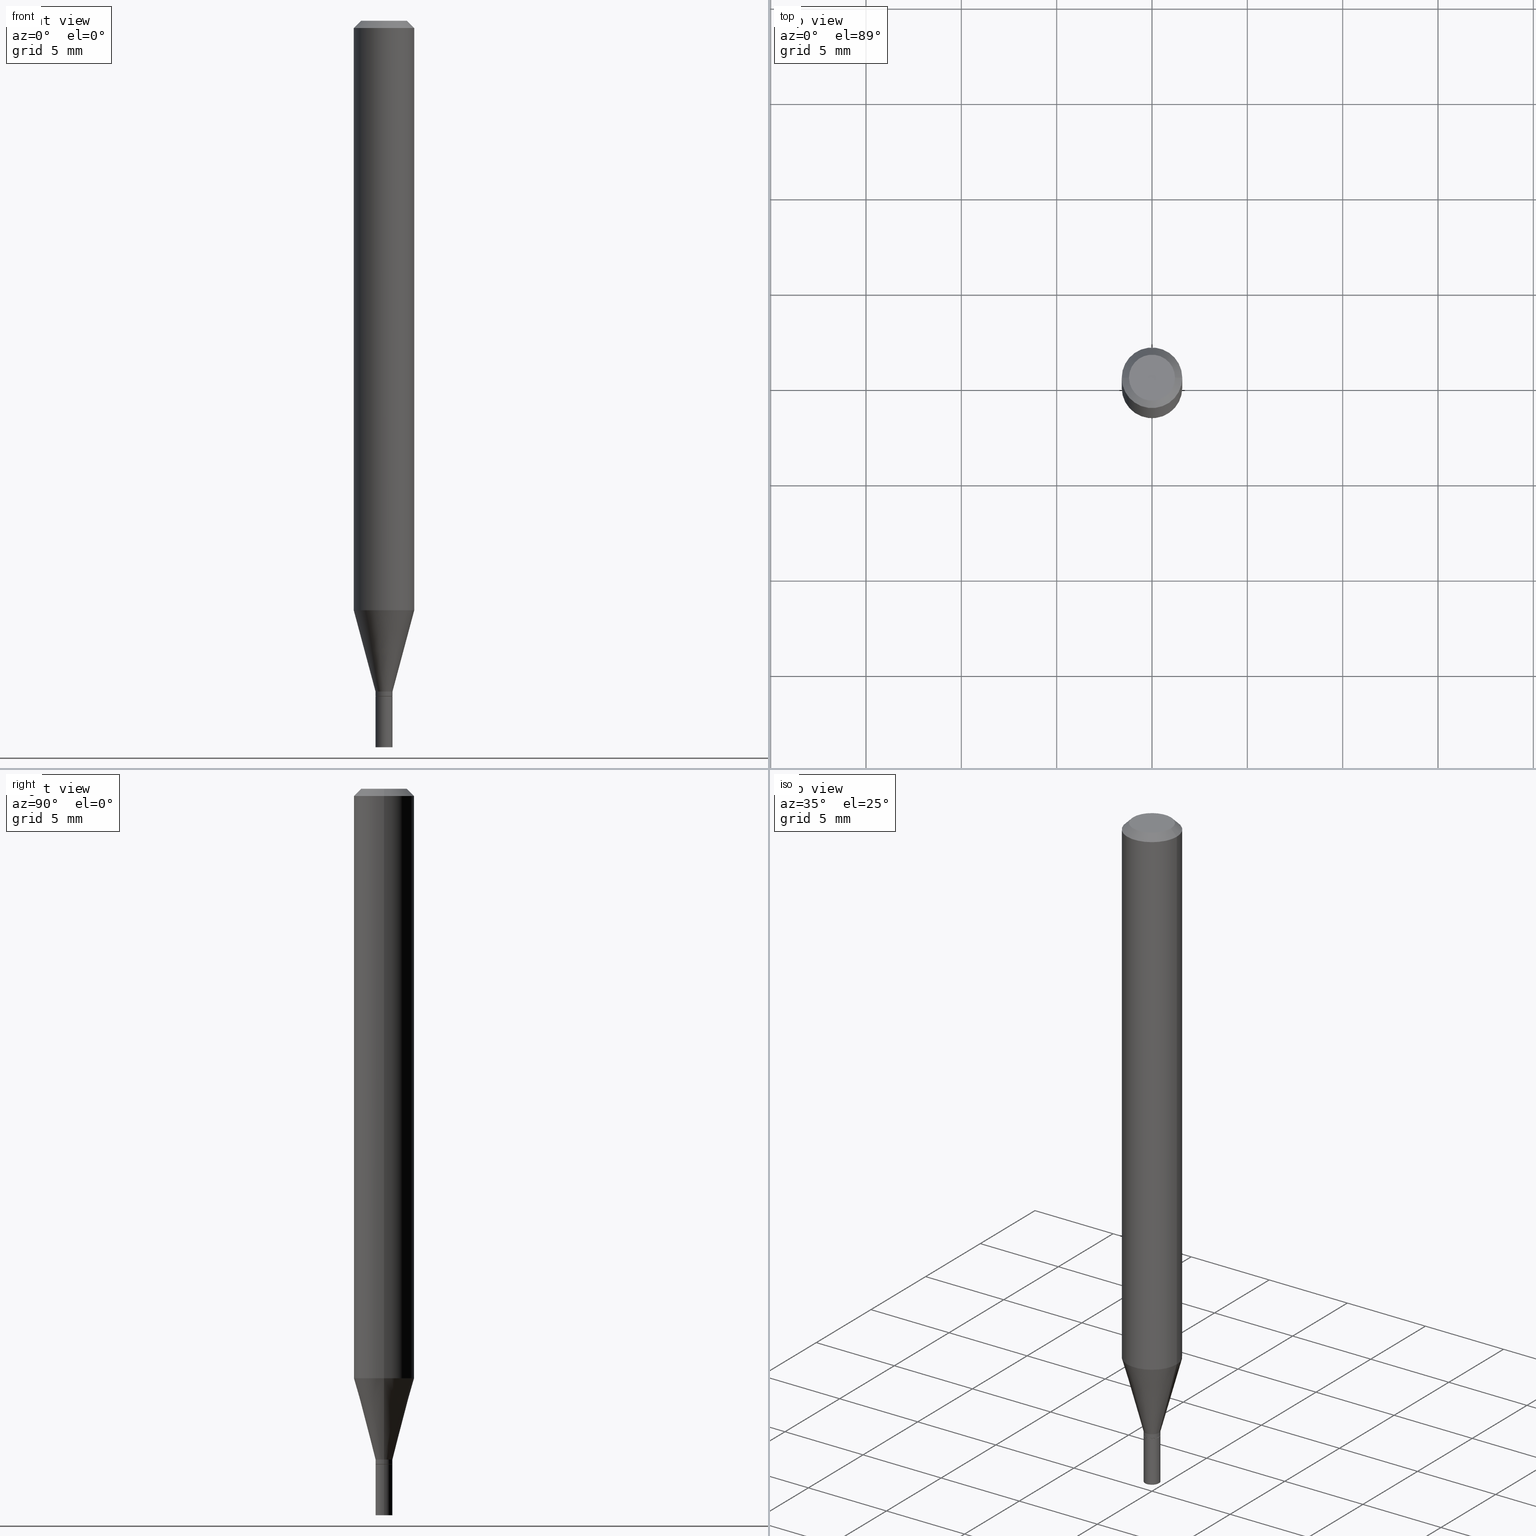
[diagram: canonical four-view strip — front | top / right | iso, engineering-drawing reading convention]
A machine part, canonical four-view strip (front | top / right | iso — engineering-drawing reading convention). The complete STEP part file that produces these views, byte-faithful:
ISO-10303-21;
HEADER;
FILE_DESCRIPTION (( 'STEP AP203' ),
    '1' );
FILE_NAME ('00841.STEP',
    '2024-03-19T22:41:24',
    ( '' ),
    ( '' ),
    'SwSTEP 2.0',
    'SolidWorks 2023',
    '' );
FILE_SCHEMA (( 'CONFIG_CONTROL_DESIGN' ));
ENDSEC;

DATA;
#1 = AXIS2_PLACEMENT_3D ( 'NONE', #294, #68, #440 ) ;
#2 = CARTESIAN_POINT ( 'NONE',  ( -0.01700000000000000122, -4.747174975432860677E-15, -1.395000000000000018 ) ) ;
#3 = SHAPE_DEFINITION_REPRESENTATION ( #301, #397 ) ;
#4 = CLOSED_SHELL ( 'NONE', ( #194, #265, #173, #40 ) ) ;
#5 = VECTOR ( 'NONE', #191, 39.37007874015748143 ) ;
#6 = CARTESIAN_POINT ( 'NONE',  ( -0.01749999999999992534, 1.243449787580170020E-16, -8.608136407946047003E-31 ) ) ;
#7 = APPROVAL_ROLE ( '' ) ;
#8 = DIRECTION ( 'NONE',  ( -2.445468806185136597E-29, 3.491481338843145583E-15, 1.000000000000000000 ) ) ;
#9 = ORIENTED_EDGE ( 'NONE', *, *, #108, .F. ) ;
#10 = LINE ( 'NONE', #215, #311 ) ;
#11 = FACE_OUTER_BOUND ( 'NONE', #366, .T. ) ;
#12 = VECTOR ( 'NONE', #101, 39.37007874015748143 ) ;
#13 = DIRECTION ( 'NONE',  ( -2.438088387897960049E-29, 3.491481338843145188E-15, 1.000000000000000000 ) ) ;
#14 = PRODUCT_DEFINITION_FORMATION_WITH_SPECIFIED_SOURCE ( 'ANY', '', #377, .NOT_KNOWN. ) ;
#15 = LINE ( 'NONE', #45, #12 ) ;
#16 = LINE ( 'NONE', #364, #180 ) ;
#17 = DIRECTION ( 'NONE',  ( 2.445468806185136597E-29, -3.491481338843145583E-15, -1.000000000000000000 ) ) ;
#18 = CARTESIAN_POINT ( 'NONE',  ( -0.01749999999999992534, -4.711356675539740119E-15, -1.385000000000000009 ) ) ;
#19 = FACE_OUTER_BOUND ( 'NONE', #425, .T. ) ;
#20 = PERSON_AND_ORGANIZATION ( #347, #144 ) ;
#21 = VECTOR ( 'NONE', #212, 39.37007874015748143 ) ;
#22 = CC_DESIGN_PERSON_AND_ORGANIZATION_ASSIGNMENT ( #166, #314, ( #14 ) ) ;
#23 = AXIS2_PLACEMENT_3D ( 'NONE', #128, #252, #136 ) ;
#24 = VERTEX_POINT ( 'NONE', #157 ) ;
#25 = ORIENTED_EDGE ( 'NONE', *, *, #67, .T. ) ;
#26 = DIRECTION ( 'NONE',  ( 2.438088387897960049E-29, -3.491481338843145188E-15, -1.000000000000000000 ) ) ;
#27 = ORIENTED_EDGE ( 'NONE', *, *, #158, .T. ) ;
#28 = APPROVAL_STATUS ( 'not_yet_approved' ) ;
#29 = ADVANCED_FACE ( 'NONE', ( #348 ), #297, .T. ) ;
#30 = ORIENTED_EDGE ( 'NONE', *, *, #34, .F. ) ;
#31 = PERSON_AND_ORGANIZATION_ROLE ( 'creator' ) ;
#32 = ORIENTED_EDGE ( 'NONE', *, *, #158, .F. ) ;
#33 = EDGE_CURVE ( 'NONE', #196, #382, #274, .T. ) ;
#34 = EDGE_CURVE ( 'NONE', #244, #165, #234, .T. ) ;
#35 = FACE_OUTER_BOUND ( 'NONE', #130, .T. ) ;
#36 = CIRCLE ( 'NONE', #161, 0.06250000000000000000 ) ;
#37 = AXIS2_PLACEMENT_3D ( 'NONE', #48, #320, #181 ) ;
#38 = CARTESIAN_POINT ( 'NONE',  ( -0.04749999999999999362, 3.578768372314202124E-16, -5.229656247639803061E-16 ) ) ;
#39 = DIRECTION ( 'NONE',  ( -2.445468806185136877E-29, 3.491481338843145188E-15, 1.000000000000000000 ) ) ;
#40 = ADVANCED_FACE ( 'NONE', ( #90 ), #63, .F. ) ;
#41 = DIMENSIONAL_EXPONENTS ( 1.000000000000000000, 0.000000000000000000, 0.000000000000000000, 0.000000000000000000, 0.000000000000000000, 0.000000000000000000, 0.000000000000000000 ) ;
#42 = CARTESIAN_POINT ( 'NONE',  ( 3.411428984628265351E-29, -4.870616467686188228E-15, -1.395000000000000018 ) ) ;
#43 = CARTESIAN_POINT ( 'NONE',  ( 0.000000000000000000, 0.000000000000000000, 0.000000000000000000 ) ) ;
#44 = DIRECTION ( 'NONE',  ( -2.445468806185136597E-29, 3.491481338843145583E-15, 1.000000000000000000 ) ) ;
#45 = CARTESIAN_POINT ( 'NONE',  ( 0.06250000000000000000, -4.811533449433679005E-16, -0.01499999999999999944 ) ) ;
#46 = AXIS2_PLACEMENT_3D ( 'NONE', #363, #293, #403 ) ;
#47 = VECTOR ( 'NONE', #70, 39.37007874015748143 ) ;
#48 = CARTESIAN_POINT ( 'NONE',  ( 3.584916967085606921E-29, -5.356492647442320375E-15, -1.500000000000000222 ) ) ;
#49 = CC_DESIGN_SECURITY_CLASSIFICATION ( #277, ( #14 ) ) ;
#50 = DIRECTION ( 'NONE',  ( 1.000000000000000000, -6.982962677686266711E-15, 0.000000000000000000 ) ) ;
#51 = VERTEX_POINT ( 'NONE', #313 ) ;
#52 = CARTESIAN_POINT ( 'NONE',  ( 0.01750000000000000167, -1.222018468595096625E-16, 8.533309357642889039E-31 ) ) ;
#53 = CIRCLE ( 'NONE', #112, 0.01700000000000000122 ) ;
#54 = PRODUCT_DEFINITION ( 'UNKNOWN', '', #14, #132 ) ;
#55 = LINE ( 'NONE', #187, #5 ) ;
#56 = CYLINDRICAL_SURFACE ( 'NONE', #282, 0.01749999999999992534 ) ;
#57 = VECTOR ( 'NONE', #39, 39.37007874015748143 ) ;
#58 = AXIS2_PLACEMENT_3D ( 'NONE', #42, #13, #135 ) ;
#59 = ORIENTED_EDGE ( 'NONE', *, *, #323, .F. ) ;
#60 = COORDINATED_UNIVERSAL_TIME_OFFSET ( 5, 0, .BEHIND. ) ;
#61 = ORIENTED_EDGE ( 'NONE', *, *, #129, .T. ) ;
#62 = DATE_AND_TIME ( #388, #150 ) ;
#63 = PLANE ( 'NONE',  #409 ) ;
#64 = CONICAL_SURFACE ( 'NONE', #442, 0.06250000000000000000, 0.7853981633974658205 ) ;
#65 = DIRECTION ( 'NONE',  ( -2.445468806185136597E-29, 3.491481338843145583E-15, 1.000000000000000000 ) ) ;
#66 = VERTEX_POINT ( 'NONE', #2 ) ;
#67 = EDGE_CURVE ( 'NONE', #465, #262, #142, .T. ) ;
#68 = DIRECTION ( 'NONE',  ( -2.445468806185136597E-29, 3.491481338843145583E-15, 1.000000000000000000 ) ) ;
#69 = AXIS2_PLACEMENT_3D ( 'NONE', #455, #345, #184 ) ;
#70 = DIRECTION ( 'NONE',  ( -2.445468806185136877E-29, 3.491481338843145188E-15, 1.000000000000000000 ) ) ;
#71 = CARTESIAN_POINT ( 'NONE',  ( 3.668203209277705088E-31, -5.237222008264718399E-17, -0.01499999999999999944 ) ) ;
#72 = VERTEX_POINT ( 'NONE', #288 ) ;
#73 = CARTESIAN_POINT ( 'NONE',  ( 3.411428984628265351E-29, -4.870616467686188228E-15, -1.395000000000000018 ) ) ;
#74 = EDGE_CURVE ( 'NONE', #165, #244, #36, .T. ) ;
#75 = CARTESIAN_POINT ( 'NONE',  ( 0.06250000000000000000, -4.888073874380388472E-16, -0.01499999999999999944 ) ) ;
#76 = EDGE_CURVE ( 'NONE', #382, #217, #85, .T. ) ;
#77 = ORIENTED_EDGE ( 'NONE', *, *, #298, .T. ) ;
#78 = DIRECTION ( 'NONE',  ( 1.000000000000000000, -6.982962677686248567E-15, 0.000000000000000000 ) ) ;
#79 = CARTESIAN_POINT ( 'NONE',  ( -0.06250000000000000000, 3.840629472727444916E-16, -0.01499999999999999944 ) ) ;
#80 = AXIS2_PLACEMENT_3D ( 'NONE', #216, #17, #365 ) ;
#81 = AXIS2_PLACEMENT_3D ( 'NONE', #402, #44, #168 ) ;
#82 = DIRECTION ( 'NONE',  ( 1.000000000000000000, -6.982962677686279332E-15, 0.000000000000000000 ) ) ;
#83 = EDGE_LOOP ( 'NONE', ( #267, #371, #326, #461 ) ) ;
#84 = ORIENTED_EDGE ( 'NONE', *, *, #273, .F. ) ;
#85 = CIRCLE ( 'NONE', #23, 0.01749999999999992534 ) ;
#86 = DIRECTION ( 'NONE',  ( -2.445468806185136597E-29, 3.491481338843145583E-15, 1.000000000000000000 ) ) ;
#87 = CARTESIAN_POINT ( 'NONE',  ( 2.976276674081067124E-29, -4.249334295536902658E-15, -1.217057713659400964 ) ) ;
#88 = ORIENTED_EDGE ( 'NONE', *, *, #315, .F. ) ;
#89 = LOCAL_TIME ( 18, 41, 24.00000000000000000, #93 ) ;
#90 = FACE_OUTER_BOUND ( 'NONE', #290, .T. ) ;
#91 = VERTEX_POINT ( 'NONE', #280 ) ;
#92 = DIRECTION ( 'NONE',  ( 1.000000000000000000, -6.982962677686270655E-15, 0.000000000000000000 ) ) ;
#93 = COORDINATED_UNIVERSAL_TIME_OFFSET ( 5, 0, .BEHIND. ) ;
#94 = ADVANCED_FACE ( 'NONE', ( #285 ), #64, .T. ) ;
#95 = PERSON_AND_ORGANIZATION ( #347, #144 ) ;
#96 = ORIENTED_EDGE ( 'NONE', *, *, #33, .T. ) ;
#97 = LINE ( 'NONE', #284, #21 ) ;
#98 = PERSON_AND_ORGANIZATION ( #347, #144 ) ;
#99 = EDGE_LOOP ( 'NONE', ( #376, #186, #279, #32 ) ) ;
#100 = CYLINDRICAL_SURFACE ( 'NONE', #340, 0.06250000000000000000 ) ;
#101 = DIRECTION ( 'NONE',  ( 0.7071067811865598962, -7.319954787623298644E-15, -0.7071067811865351382 ) ) ;
#102 = CIRCLE ( 'NONE', #378, 0.04749999999999999362 ) ;
#103 = DIRECTION ( 'NONE',  ( -2.445468806185136877E-29, 3.491481338843145188E-15, 1.000000000000000000 ) ) ;
#104 = EDGE_LOOP ( 'NONE', ( #305, #138, #404, #339 ) ) ;
#105 = CARTESIAN_POINT ( 'NONE',  ( 3.668203209277704895E-29, -5.237222008264718177E-15, -1.500000000000000222 ) ) ;
#106 = DIRECTION ( 'NONE',  ( -2.445468806185136597E-29, 3.491481338843145583E-15, 1.000000000000000000 ) ) ;
#107 = FACE_OUTER_BOUND ( 'NONE', #183, .T. ) ;
#108 = EDGE_CURVE ( 'NONE', #439, #196, #227, .T. ) ;
#109 = CARTESIAN_POINT ( 'NONE',  ( 0.000000000000000000, 0.000000000000000000, 0.000000000000000000 ) ) ;
#110 = CIRCLE ( 'NONE', #331, 0.06250000000000000000 ) ;
#111 = ORIENTED_EDGE ( 'NONE', *, *, #281, .T. ) ;
#112 = AXIS2_PLACEMENT_3D ( 'NONE', #73, #328, #361 ) ;
#113 = CARTESIAN_POINT ( 'NONE',  ( 0.000000000000000000, 0.000000000000000000, 0.000000000000000000 ) ) ;
#114 = PLANE ( 'NONE',  #321 ) ;
#115 = ADVANCED_FACE ( 'NONE', ( #11 ), #220, .T. ) ;
#116 = CARTESIAN_POINT ( 'NONE',  ( -0.01749999999999992534, -4.744525748258750265E-15, -1.394500000000000073 ) ) ;
#117 = PERSON_AND_ORGANIZATION ( #347, #144 ) ;
#118 = APPROVAL_PERSON_ORGANIZATION ( #139, #127, #7 ) ;
#119 = CARTESIAN_POINT ( 'NONE',  ( 0.01749999999999992534, -1.222018468595091448E-16, 8.533309357642850503E-31 ) ) ;
#120 = ORIENTED_EDGE ( 'NONE', *, *, #344, .F. ) ;
#121 = DIRECTION ( 'NONE',  ( 1.000000000000000000, -6.982962677686279332E-15, 0.000000000000000000 ) ) ;
#122 = PERSON_AND_ORGANIZATION_ROLE ( 'design_owner' ) ;
#123 = EDGE_LOOP ( 'NONE', ( #170, #203, #59, #250 ) ) ;
#124 = FACE_OUTER_BOUND ( 'NONE', #422, .T. ) ;
#125 = ORIENTED_EDGE ( 'NONE', *, *, #74, .T. ) ;
#126 = VERTEX_POINT ( 'NONE', #185 ) ;
#127 = APPROVAL ( #240, 'UNSPECIFIED' ) ;
#128 = CARTESIAN_POINT ( 'NONE',  ( 3.386974296566414366E-29, -4.835701654297756579E-15, -1.385000000000000009 ) ) ;
#129 = EDGE_CURVE ( 'NONE', #401, #51, #434, .T. ) ;
#130 = EDGE_LOOP ( 'NONE', ( #225, #176, #77, #30 ) ) ;
#131 = CIRCLE ( 'NONE', #245, 0.01750000000000000167 ) ;
#132 = DESIGN_CONTEXT ( 'detailed design', #319, 'design' ) ;
#133 = PERSON_AND_ORGANIZATION_ROLE ( 'classification_officer' ) ;
#134 = CARTESIAN_POINT ( 'NONE',  ( 0.06250000000000000000, -4.364351673553916694E-16, 3.047610484872459871E-30 ) ) ;
#135 = DIRECTION ( 'NONE',  ( 1.000000000000000000, -6.982962677686265922E-15, 4.876176775795935793E-29 ) ) ;
#136 = DIRECTION ( 'NONE',  ( 1.000000000000000000, -6.982962677686279332E-15, 0.000000000000000000 ) ) ;
#137 = EDGE_CURVE ( 'NONE', #24, #140, #110, .T. ) ;
#138 = ORIENTED_EDGE ( 'NONE', *, *, #438, .T. ) ;
#139 = PERSON_AND_ORGANIZATION ( #347, #144 ) ;
#140 = VERTEX_POINT ( 'NONE', #75 ) ;
#141 = CARTESIAN_POINT ( 'NONE',  ( 0.000000000000000000, 0.000000000000000000, 0.000000000000000000 ) ) ;
#142 = CIRCLE ( 'NONE', #351, 0.01750000000000000167 ) ;
#143 = DIRECTION ( 'NONE',  ( 1.000000000000000000, -6.982962677686267499E-15, 4.852736867747366768E-29 ) ) ;
#144 = ORGANIZATION ( 'UNSPECIFIED', 'UNSPECIFIED', '' ) ;
#145 = CYLINDRICAL_SURFACE ( 'NONE', #369, 0.01749999999999992534 ) ;
#146 = FACE_OUTER_BOUND ( 'NONE', #99, .T. ) ;
#147 = EDGE_CURVE ( 'NONE', #51, #140, #15, .T. ) ;
#148 = DIRECTION ( 'NONE',  ( 0.7071067811865642261, -2.468850131082431399E-15, 0.7071067811865309194 ) ) ;
#149 =( NAMED_UNIT ( * ) PLANE_ANGLE_UNIT ( ) SI_UNIT ( $, .RADIAN. ) );
#150 = LOCAL_TIME ( 18, 41, 24.00000000000000000, #60 ) ;
#151 = FACE_OUTER_BOUND ( 'NONE', #307, .T. ) ;
#152 = ADVANCED_FACE ( 'NONE', ( #222 ), #195, .T. ) ;
#153 = CARTESIAN_POINT ( 'NONE',  ( 0.01750000000000000167, -4.992818314545698211E-15, -1.395000000000000018 ) ) ;
#154 = CONICAL_SURFACE ( 'NONE', #263, 0.01700000000000000122, 0.7853981633974718157 ) ;
#155 = ORIENTED_EDGE ( 'NONE', *, *, #33, .F. ) ;
#156 = CIRCLE ( 'NONE', #359, 0.01750000000000000167 ) ;
#157 = CARTESIAN_POINT ( 'NONE',  ( -0.06250000000000000000, -1.706764047959712450E-15, -0.01499999999999999944 ) ) ;
#158 = EDGE_CURVE ( 'NONE', #91, #465, #373, .T. ) ;
#159 = ORIENTED_EDGE ( 'NONE', *, *, #137, .T. ) ;
#160 = APPROVAL_ROLE ( '' ) ;
#161 = AXIS2_PLACEMENT_3D ( 'NONE', #441, #360, #295 ) ;
#162 = APPROVAL ( #192, 'UNSPECIFIED' ) ;
#163 = DIRECTION ( 'NONE',  ( -2.445468806185136877E-29, 3.491481338843145188E-15, 1.000000000000000000 ) ) ;
#164 = ORIENTED_EDGE ( 'NONE', *, *, #302, .T. ) ;
#165 = VERTEX_POINT ( 'NONE', #368 ) ;
#166 = PERSON_AND_ORGANIZATION ( #347, #144 ) ;
#167 = AXIS2_PLACEMENT_3D ( 'NONE', #43, #106, #333 ) ;
#168 = DIRECTION ( 'NONE',  ( 1.000000000000000000, -6.982962677686279332E-15, 0.000000000000000000 ) ) ;
#169 = AXIS2_PLACEMENT_3D ( 'NONE', #113, #264, #413 ) ;
#170 = ORIENTED_EDGE ( 'NONE', *, *, #380, .T. ) ;
#171 = DIRECTION ( 'NONE',  ( -2.445468806185136597E-29, 3.491481338843145583E-15, 1.000000000000000000 ) ) ;
#172 = CYLINDRICAL_SURFACE ( 'NONE', #459, 0.01750000000000000167 ) ;
#173 = ADVANCED_FACE ( 'NONE', ( #179 ), #182, .T. ) ;
#174 = LINE ( 'NONE', #254, #399 ) ;
#175 = DIRECTION ( 'NONE',  ( 1.000000000000000000, -6.982962677686265922E-15, 4.876176775795936353E-29 ) ) ;
#176 = ORIENTED_EDGE ( 'NONE', *, *, #231, .T. ) ;
#177 = DIRECTION ( 'NONE',  ( 1.000000000000000000, -6.982962677686266711E-15, 4.876176775795935232E-29 ) ) ;
#178 = VECTOR ( 'NONE', #325, 39.37007874015748143 ) ;
#179 = FACE_OUTER_BOUND ( 'NONE', #233, .T. ) ;
#180 = VECTOR ( 'NONE', #324, 39.37007874015748143 ) ;
#181 = DIRECTION ( 'NONE',  ( 1.000000000000000000, -6.982962677686265922E-15, 4.876176775795935793E-29 ) ) ;
#182 = CYLINDRICAL_SURFACE ( 'NONE', #167, 0.01750000000000000167 ) ;
#183 = EDGE_LOOP ( 'NONE', ( #350, #352, #408, #155 ) ) ;
#184 = DIRECTION ( 'NONE',  ( 1.000000000000000000, -6.982962677686274599E-15, 0.000000000000000000 ) ) ;
#185 = CARTESIAN_POINT ( 'NONE',  ( 0.01700000000000000122, -4.989326833206855204E-15, -1.395000000000000018 ) ) ;
#186 = ORIENTED_EDGE ( 'NONE', *, *, #344, .T. ) ;
#187 = CARTESIAN_POINT ( 'NONE',  ( -0.01700000000000000122, -4.749824202606971878E-15, -1.395000000000000018 ) ) ;
#188 = CONICAL_SURFACE ( 'NONE', #81, 0.01749999999999992534, 0.2617993877991502960 ) ;
#189 = LINE ( 'NONE', #18, #427 ) ;
#190 = PERSON_AND_ORGANIZATION ( #347, #144 ) ;
#191 = DIRECTION ( 'NONE',  ( -0.7071067811865642261, 7.493145998870414114E-15, 0.7071067811865309194 ) ) ;
#192 = APPROVAL_STATUS ( 'not_yet_approved' ) ;
#193 =( LENGTH_UNIT ( ) NAMED_UNIT ( * ) SI_UNIT ( $, .METRE. ) );
#194 = ADVANCED_FACE ( 'NONE', ( #146 ), #172, .T. ) ;
#195 = CONICAL_SURFACE ( 'NONE', #80, 0.06250000000000000000, 0.7853981633974658205 ) ;
#196 = VERTEX_POINT ( 'NONE', #431 ) ;
#197 = CARTESIAN_POINT ( 'NONE',  ( -0.06249999999999999306, -3.805245085686840042E-15, -1.217057713659400964 ) ) ;
#198 = CARTESIAN_POINT ( 'NONE',  ( 3.316907271900976096E-16, 0.04749999999999999362, -4.273281759770383169E-16 ) ) ;
#199 = MANIFOLD_SOLID_BREP ( 'Body-Move/Copy2[2]', #286 ) ;
#200 = DIRECTION ( 'NONE',  ( -1.000000000000000000, 6.982962677686265922E-15, -4.876176775795935793E-29 ) ) ;
#201 = AXIS2_PLACEMENT_3D ( 'NONE', #447, #255, #143 ) ;
#202 = MANIFOLD_SOLID_BREP ( 'Body-Move/Copy2[1]', #4 ) ;
#203 = ORIENTED_EDGE ( 'NONE', *, *, #433, .T. ) ;
#204 = ORIENTED_EDGE ( 'NONE', *, *, #34, .T. ) ;
#205 = ORIENTED_EDGE ( 'NONE', *, *, #108, .T. ) ;
#206 = FACE_OUTER_BOUND ( 'NONE', #449, .T. ) ;
#207 = ORIENTED_EDGE ( 'NONE', *, *, #387, .F. ) ;
#208 = FACE_OUTER_BOUND ( 'NONE', #310, .T. ) ;
#209 = CARTESIAN_POINT ( 'NONE',  ( 3.668203209277705088E-31, -5.237222008264718399E-17, -0.01499999999999999944 ) ) ;
#210 = CC_DESIGN_APPROVAL ( #342, ( #14 ) ) ;
#211 = DATE_AND_TIME ( #416, #89 ) ;
#212 = DIRECTION ( 'NONE',  ( 0.2588190451025216277, 1.565188264969619995E-15, 0.9659258262890679791 ) ) ;
#213 = DIRECTION ( 'NONE',  ( -1.000000000000000000, 6.982962677686266711E-15, 0.000000000000000000 ) ) ;
#214 = CC_DESIGN_DATE_AND_TIME_ASSIGNMENT ( #322, #389, ( #277 ) ) ;
#215 = CARTESIAN_POINT ( 'NONE',  ( -0.01750000000000000167, 1.243449787580175444E-16, -8.608136407946085539E-31 ) ) ;
#216 = CARTESIAN_POINT ( 'NONE',  ( 3.668203209277705088E-31, -5.237222008264718399E-17, -0.01499999999999999944 ) ) ;
#217 = VERTEX_POINT ( 'NONE', #329 ) ;
#218 = LINE ( 'NONE', #134, #253 ) ;
#219 = AXIS2_PLACEMENT_3D ( 'NONE', #308, #430, #121 ) ;
#220 = CYLINDRICAL_SURFACE ( 'NONE', #46, 0.06250000000000000000 ) ;
#221 = AXIS2_PLACEMENT_3D ( 'NONE', #249, #396, #405 ) ;
#222 = FACE_OUTER_BOUND ( 'NONE', #83, .T. ) ;
#223 = ORIENTED_EDGE ( 'NONE', *, *, #231, .F. ) ;
#224 = APPLICATION_PROTOCOL_DEFINITION ( 'international standard', 'config_control_design', 1994, #296 ) ;
#225 = ORIENTED_EDGE ( 'NONE', *, *, #438, .F. ) ;
#226 = EDGE_CURVE ( 'NONE', #401, #24, #407, .T. ) ;
#227 = CIRCLE ( 'NONE', #384, 0.01749999999999992534 ) ;
#228 = CIRCLE ( 'NONE', #221, 0.06250000000000000000 ) ;
#229 = DIRECTION ( 'NONE',  ( -2.445468806185136597E-29, 3.491481338843145583E-15, 1.000000000000000000 ) ) ;
#230 = DIRECTION ( 'NONE',  ( 1.000000000000000000, -6.982962677686274599E-15, 0.000000000000000000 ) ) ;
#231 = EDGE_CURVE ( 'NONE', #217, #382, #243, .T. ) ;
#232 = ADVANCED_FACE ( 'NONE', ( #338 ), #154, .T. ) ;
#233 = EDGE_LOOP ( 'NONE', ( #120, #428, #27, #424 ) ) ;
#234 = CIRCLE ( 'NONE', #453, 0.06250000000000000000 ) ;
#235 = ORIENTED_EDGE ( 'NONE', *, *, #433, .F. ) ;
#236 = APPROVAL_PERSON_ORGANIZATION ( #117, #342, #160 ) ;
#237 = CC_DESIGN_DATE_AND_TIME_ASSIGNMENT ( #62, #268, ( #54 ) ) ;
#238 = DIRECTION ( 'NONE',  ( 2.438088387897960049E-29, -3.491481338843145188E-15, -1.000000000000000000 ) ) ;
#239 = APPLICATION_PROTOCOL_DEFINITION ( 'international standard', 'config_control_design', 1994, #319 ) ;
#240 = APPROVAL_STATUS ( 'not_yet_approved' ) ;
#241 = ADVANCED_FACE ( 'NONE', ( #151 ), #56, .T. ) ;
#242 = CARTESIAN_POINT ( 'NONE',  ( 3.410206250225173110E-29, -4.868870727016767513E-15, -1.394500000000000073 ) ) ;
#243 = CIRCLE ( 'NONE', #304, 0.01749999999999992534 ) ;
#244 = VERTEX_POINT ( 'NONE', #197 ) ;
#245 = AXIS2_PLACEMENT_3D ( 'NONE', #105, #258, #437 ) ;
#246 = CALENDAR_DATE ( 2024, 19, 3 ) ;
#247 = ADVANCED_FACE ( 'NONE', ( #19 ), #114, .F. ) ;
#248 = APPROVAL_DATE_TIME ( #443, #127 ) ;
#249 = CARTESIAN_POINT ( 'NONE',  ( 3.668203209277705088E-31, -5.237222008264718399E-17, -0.01499999999999999944 ) ) ;
#250 = ORIENTED_EDGE ( 'NONE', *, *, #266, .F. ) ;
#251 = CARTESIAN_POINT ( 'NONE',  ( 0.000000000000000000, 0.000000000000000000, 0.000000000000000000 ) ) ;
#252 = DIRECTION ( 'NONE',  ( -2.445468806185136597E-29, 3.491481338843145583E-15, 1.000000000000000000 ) ) ;
#253 = VECTOR ( 'NONE', #103, 39.37007874015748143 ) ;
#254 = CARTESIAN_POINT ( 'NONE',  ( 0.01700000000000000122, -4.989326833206855204E-15, -1.395000000000000018 ) ) ;
#255 = DIRECTION ( 'NONE',  ( -2.445468806185136597E-29, 3.491481338843145583E-15, 1.000000000000000000 ) ) ;
#256 = ORIENTED_EDGE ( 'NONE', *, *, #129, .F. ) ;
#257 = ORIENTED_EDGE ( 'NONE', *, *, #370, .T. ) ;
#258 = DIRECTION ( 'NONE',  ( -2.445468806185136597E-29, 3.491481338843145583E-15, 1.000000000000000000 ) ) ;
#259 = DIRECTION ( 'NONE',  ( -2.445468806185136597E-29, 3.491481338843145583E-15, 1.000000000000000000 ) ) ;
#260 = CARTESIAN_POINT ( 'NONE',  ( 0.01749999999999992534, -4.957903501157266562E-15, -1.385000000000000009 ) ) ;
#261 = CARTESIAN_POINT ( 'NONE',  ( 3.386974296566414366E-29, -4.835701654297756579E-15, -1.385000000000000009 ) ) ;
#262 = VERTEX_POINT ( 'NONE', #429 ) ;
#263 = AXIS2_PLACEMENT_3D ( 'NONE', #458, #270, #230 ) ;
#264 = DIRECTION ( 'NONE',  ( 0.000000000000000000, 0.000000000000000000, 1.000000000000000000 ) ) ;
#265 = ADVANCED_FACE ( 'NONE', ( #124 ), #278, .F. ) ;
#266 = EDGE_CURVE ( 'NONE', #126, #196, #174, .T. ) ;
#267 = ORIENTED_EDGE ( 'NONE', *, *, #370, .F. ) ;
#268 = DATE_TIME_ROLE ( 'creation_date' ) ;
#269 = LOCAL_TIME ( 18, 41, 24.00000000000000000, #327 ) ;
#270 = DIRECTION ( 'NONE',  ( -2.445468806185136597E-29, 3.491481338843145583E-15, 1.000000000000000000 ) ) ;
#271 = DIRECTION ( 'NONE',  ( -2.445468806185136597E-29, 3.491481338843145583E-15, 1.000000000000000000 ) ) ;
#272 = ORIENTED_EDGE ( 'NONE', *, *, #226, .T. ) ;
#273 = EDGE_CURVE ( 'NONE', #439, #217, #357, .T. ) ;
#274 = LINE ( 'NONE', #119, #318 ) ;
#275 = PERSON_AND_ORGANIZATION ( #347, #144 ) ;
#276 = EDGE_LOOP ( 'NONE', ( #235, #392, #464, #9 ) ) ;
#277 = SECURITY_CLASSIFICATION ( '', '', #355 ) ;
#278 = PLANE ( 'NONE',  #37 ) ;
#279 = ORIENTED_EDGE ( 'NONE', *, *, #67, .F. ) ;
#280 = CARTESIAN_POINT ( 'NONE',  ( 0.01750000000000000167, -5.359423855124228160E-15, -1.500000000000000222 ) ) ;
#281 = EDGE_CURVE ( 'NONE', #165, #140, #218, .T. ) ;
#282 = AXIS2_PLACEMENT_3D ( 'NONE', #421, #383, #300 ) ;
#283 = DIRECTION ( 'NONE',  ( -2.445468806185136597E-29, 3.491481338843145583E-15, 1.000000000000000000 ) ) ;
#284 = CARTESIAN_POINT ( 'NONE',  ( 0.01749999999999992534, -4.957903501157266562E-15, -1.385000000000000009 ) ) ;
#285 = FACE_OUTER_BOUND ( 'NONE', #385, .T. ) ;
#286 = CLOSED_SHELL ( 'NONE', ( #349, #456, #152, #420, #29, #291, #115, #94, #247, #372, #232, #241 ) ) ;
#287 = PLANE ( 'NONE',  #58 ) ;
#288 = CARTESIAN_POINT ( 'NONE',  ( -0.01750000000000000167, -4.929574259217435954E-15, -1.500000000000000222 ) ) ;
#289 =( GEOMETRIC_REPRESENTATION_CONTEXT ( 3 ) GLOBAL_UNCERTAINTY_ASSIGNED_CONTEXT ( ( #317 ) ) GLOBAL_UNIT_ASSIGNED_CONTEXT ( ( #463, #149, #337 ) ) REPRESENTATION_CONTEXT ( 'NONE', 'WORKASPACE' ) );
#290 = EDGE_LOOP ( 'NONE', ( #25, #164 ) ) ;
#291 = ADVANCED_FACE ( 'NONE', ( #35 ), #188, .T. ) ;
#292 = CARTESIAN_POINT ( 'NONE',  ( 3.411428984628265351E-29, -4.870616467686188228E-15, -1.395000000000000018 ) ) ;
#293 = DIRECTION ( 'NONE',  ( -2.445468806185136597E-29, 3.491481338843145583E-15, 1.000000000000000000 ) ) ;
#294 = CARTESIAN_POINT ( 'NONE',  ( 3.410206250225173110E-29, -4.868870727016767513E-15, -1.394500000000000073 ) ) ;
#295 = DIRECTION ( 'NONE',  ( 1.000000000000000000, -6.982962677686270655E-15, 0.000000000000000000 ) ) ;
#296 = APPLICATION_CONTEXT ( 'configuration controlled 3d designs of mechanical parts and assemblies' ) ;
#297 = CONICAL_SURFACE ( 'NONE', #219, 0.01749999999999992534, 0.2617993877991502960 ) ;
#298 = EDGE_CURVE ( 'NONE', #382, #165, #97, .T. ) ;
#299 = CIRCLE ( 'NONE', #445, 0.01700000000000000122 ) ;
#300 = DIRECTION ( 'NONE',  ( 1.000000000000000000, -6.982962677686266711E-15, 4.876176775795935232E-29 ) ) ;
#301 = PRODUCT_DEFINITION_SHAPE ( 'NONE', 'NONE',  #54 ) ;
#302 = EDGE_CURVE ( 'NONE', #262, #465, #156, .T. ) ;
#303 = CC_DESIGN_PERSON_AND_ORGANIZATION_ASSIGNMENT ( #95, #133, ( #277 ) ) ;
#304 = AXIS2_PLACEMENT_3D ( 'NONE', #261, #411, #82 ) ;
#305 = ORIENTED_EDGE ( 'NONE', *, *, #76, .T. ) ;
#306 = APPROVAL_DATE_TIME ( #386, #162 ) ;
#307 = EDGE_LOOP ( 'NONE', ( #84, #205, #96, #223 ) ) ;
#308 = CARTESIAN_POINT ( 'NONE',  ( 3.386974296566414366E-29, -4.835701654297756579E-15, -1.385000000000000009 ) ) ;
#309 = DIRECTION ( 'NONE',  ( -1.000000000000000000, 6.982962677686265922E-15, -4.876176775795935793E-29 ) ) ;
#310 = EDGE_LOOP ( 'NONE', ( #125, #336, #432, #374 ) ) ;
#311 = VECTOR ( 'NONE', #451, 39.37007874015748143 ) ;
#312 = EDGE_CURVE ( 'NONE', #72, #91, #436, .T. ) ;
#313 = CARTESIAN_POINT ( 'NONE',  ( 0.04749999999999999362, -4.035134999187587991E-16, -5.229656247639753758E-16 ) ) ;
#314 = PERSON_AND_ORGANIZATION_ROLE ( 'design_supplier' ) ;
#315 = EDGE_CURVE ( 'NONE', #244, #24, #16, .T. ) ;
#316 = COORDINATED_UNIVERSAL_TIME_OFFSET ( 5, 0, .BEHIND. ) ;
#317 = UNCERTAINTY_MEASURE_WITH_UNIT (LENGTH_MEASURE( 1.000000000000000082E-05 ), #463, 'distance_accuracy_value', 'NONE');
#318 = VECTOR ( 'NONE', #163, 39.37007874015748143 ) ;
#319 = APPLICATION_CONTEXT ( 'configuration controlled 3d designs of mechanical parts and assemblies' ) ;
#320 = DIRECTION ( 'NONE',  ( -2.438088387897960049E-29, 3.491481338843145188E-15, 1.000000000000000000 ) ) ;
#321 = AXIS2_PLACEMENT_3D ( 'NONE', #198, #26, #309 ) ;
#322 = DATE_AND_TIME ( #246, #269 ) ;
#323 = EDGE_CURVE ( 'NONE', #196, #439, #346, .T. ) ;
#324 = DIRECTION ( 'NONE',  ( -2.445468806185136877E-29, 3.491481338843145188E-15, 1.000000000000000000 ) ) ;
#325 = DIRECTION ( 'NONE',  ( -0.7071067811865598962, 2.468850131082386434E-15, -0.7071067811865351382 ) ) ;
#326 = ORIENTED_EDGE ( 'NONE', *, *, #406, .T. ) ;
#327 = COORDINATED_UNIVERSAL_TIME_OFFSET ( 5, 0, .BEHIND. ) ;
#328 = DIRECTION ( 'NONE',  ( -2.445468806185136597E-29, 3.491481338843145583E-15, 1.000000000000000000 ) ) ;
#329 = CARTESIAN_POINT ( 'NONE',  ( -0.01749999999999992534, -4.258300880613290081E-15, -1.385000000000000009 ) ) ;
#330 = EDGE_CURVE ( 'NONE', #66, #126, #53, .T. ) ;
#331 = AXIS2_PLACEMENT_3D ( 'NONE', #209, #65, #50 ) ;
#332 = CARTESIAN_POINT ( 'NONE',  ( 1.278896122067429216E-44, -1.825924719719875646E-30, -5.229656247639779395E-16 ) ) ;
#333 = DIRECTION ( 'NONE',  ( 1.000000000000000000, -6.982962677686265922E-15, 4.876176775795936353E-29 ) ) ;
#334 = CC_DESIGN_APPROVAL ( #162, ( #54 ) ) ;
#335 = DIRECTION ( 'NONE',  ( 1.000000000000000000, -6.982962677686248567E-15, 0.000000000000000000 ) ) ;
#336 = ORIENTED_EDGE ( 'NONE', *, *, #315, .T. ) ;
#337 =( NAMED_UNIT ( * ) SI_UNIT ( $, .STERADIAN. ) SOLID_ANGLE_UNIT ( ) );
#338 = FACE_OUTER_BOUND ( 'NONE', #276, .T. ) ;
#339 = ORIENTED_EDGE ( 'NONE', *, *, #298, .F. ) ;
#340 = AXIS2_PLACEMENT_3D ( 'NONE', #251, #229, #379 ) ;
#341 = CC_DESIGN_PERSON_AND_ORGANIZATION_ASSIGNMENT ( #20, #122, ( #377 ) ) ;
#342 = APPROVAL ( #28, 'UNSPECIFIED' ) ;
#343 = LENGTH_MEASURE_WITH_UNIT ( LENGTH_MEASURE( 0.02539999999999999897 ), #193 );
#344 = EDGE_CURVE ( 'NONE', #72, #262, #10, .T. ) ;
#345 = DIRECTION ( 'NONE',  ( -2.445468806185136597E-29, 3.491481338843145583E-15, 1.000000000000000000 ) ) ;
#346 = CIRCLE ( 'NONE', #1, 0.01749999999999992534 ) ;
#347 = PERSON ( 'UNSPECIFIED', 'UNSPECIFIED', 'UNSPECIFIED', ('UNSPECIFIED'), ('UNSPECIFIED'), ('UNSPECIFIED') ) ;
#348 = FACE_OUTER_BOUND ( 'NONE', #104, .T. ) ;
#349 = ADVANCED_FACE ( 'NONE', ( #107 ), #145, .T. ) ;
#350 = ORIENTED_EDGE ( 'NONE', *, *, #323, .T. ) ;
#351 = AXIS2_PLACEMENT_3D ( 'NONE', #415, #86, #381 ) ;
#352 = ORIENTED_EDGE ( 'NONE', *, *, #273, .T. ) ;
#353 = ORIENTED_EDGE ( 'NONE', *, *, #137, .F. ) ;
#354 = AXIS2_PLACEMENT_3D ( 'NONE', #367, #283, #78 ) ;
#355 = SECURITY_CLASSIFICATION_LEVEL ( 'unclassified' ) ;
#356 = ORIENTED_EDGE ( 'NONE', *, *, #380, .F. ) ;
#357 = LINE ( 'NONE', #6, #47 ) ;
#358 = DIRECTION ( 'NONE',  ( 1.000000000000000000, -6.982962677686274599E-15, 0.000000000000000000 ) ) ;
#359 = AXIS2_PLACEMENT_3D ( 'NONE', #292, #398, #335 ) ;
#360 = DIRECTION ( 'NONE',  ( -2.445468806185136597E-29, 3.491481338843145583E-15, 1.000000000000000000 ) ) ;
#361 = DIRECTION ( 'NONE',  ( 1.000000000000000000, -6.982962677686274599E-15, 0.000000000000000000 ) ) ;
#362 = ORIENTED_EDGE ( 'NONE', *, *, #330, .F. ) ;
#363 = CARTESIAN_POINT ( 'NONE',  ( 0.000000000000000000, 0.000000000000000000, 0.000000000000000000 ) ) ;
#364 = CARTESIAN_POINT ( 'NONE',  ( -0.06250000000000000000, 4.440892098500626162E-16, -3.074334431409316114E-30 ) ) ;
#365 = DIRECTION ( 'NONE',  ( -1.000000000000000000, 6.982962677686266711E-15, 0.000000000000000000 ) ) ;
#366 = EDGE_LOOP ( 'NONE', ( #88, #204, #111, #353 ) ) ;
#367 = CARTESIAN_POINT ( 'NONE',  ( 3.668203209277704895E-29, -5.237222008264718177E-15, -1.500000000000000222 ) ) ;
#368 = CARTESIAN_POINT ( 'NONE',  ( 0.06249999999999999306, -4.685769462892295117E-15, -1.217057713659400964 ) ) ;
#369 = AXIS2_PLACEMENT_3D ( 'NONE', #141, #171, #177 ) ;
#370 = EDGE_CURVE ( 'NONE', #51, #401, #102, .T. ) ;
#371 = ORIENTED_EDGE ( 'NONE', *, *, #147, .T. ) ;
#372 = ADVANCED_FACE ( 'NONE', ( #206 ), #287, .F. ) ;
#373 = LINE ( 'NONE', #52, #57 ) ;
#374 = ORIENTED_EDGE ( 'NONE', *, *, #281, .F. ) ;
#375 = MECHANICAL_CONTEXT ( 'NONE', #296, 'mechanical' ) ;
#376 = ORIENTED_EDGE ( 'NONE', *, *, #387, .T. ) ;
#377 = PRODUCT ( '00841', '00841', '', ( #375 ) ) ;
#378 = AXIS2_PLACEMENT_3D ( 'NONE', #332, #8, #410 ) ;
#379 = DIRECTION ( 'NONE',  ( 1.000000000000000000, -6.982962677686266711E-15, 4.876176775795935793E-29 ) ) ;
#380 = EDGE_CURVE ( 'NONE', #126, #66, #299, .T. ) ;
#381 = DIRECTION ( 'NONE',  ( 1.000000000000000000, -6.982962677686248567E-15, 0.000000000000000000 ) ) ;
#382 = VERTEX_POINT ( 'NONE', #260 ) ;
#383 = DIRECTION ( 'NONE',  ( -2.445468806185136597E-29, 3.491481338843145583E-15, 1.000000000000000000 ) ) ;
#384 = AXIS2_PLACEMENT_3D ( 'NONE', #242, #452, #391 ) ;
#385 = EDGE_LOOP ( 'NONE', ( #395, #256, #272, #159 ) ) ;
#386 = DATE_AND_TIME ( #423, #414 ) ;
#387 = EDGE_CURVE ( 'NONE', #91, #72, #131, .T. ) ;
#388 = CALENDAR_DATE ( 2024, 19, 3 ) ;
#389 = DATE_TIME_ROLE ( 'classification_date' ) ;
#390 = CC_DESIGN_PERSON_AND_ORGANIZATION_ASSIGNMENT ( #98, #31, ( #14 ) ) ;
#391 = DIRECTION ( 'NONE',  ( 1.000000000000000000, -6.982962677686279332E-15, 0.000000000000000000 ) ) ;
#392 = ORIENTED_EDGE ( 'NONE', *, *, #330, .T. ) ;
#393 = LOCAL_TIME ( 18, 41, 24.00000000000000000, #316 ) ;
#394 = CALENDAR_DATE ( 2024, 19, 3 ) ;
#395 = ORIENTED_EDGE ( 'NONE', *, *, #147, .F. ) ;
#396 = DIRECTION ( 'NONE',  ( -2.445468806185136597E-29, 3.491481338843145583E-15, 1.000000000000000000 ) ) ;
#397 = ADVANCED_BREP_SHAPE_REPRESENTATION ( '00841', ( #202, #199, #169 ), #289 ) ;
#398 = DIRECTION ( 'NONE',  ( -2.445468806185136597E-29, 3.491481338843145583E-15, 1.000000000000000000 ) ) ;
#399 = VECTOR ( 'NONE', #148, 39.37007874015748143 ) ;
#400 = DIRECTION ( 'NONE',  ( 2.445468806185136597E-29, -3.491481338843145583E-15, -1.000000000000000000 ) ) ;
#401 = VERTEX_POINT ( 'NONE', #38 ) ;
#402 = CARTESIAN_POINT ( 'NONE',  ( 3.386974296566414366E-29, -4.835701654297756579E-15, -1.385000000000000009 ) ) ;
#403 = DIRECTION ( 'NONE',  ( 1.000000000000000000, -6.982962677686266711E-15, 4.876176775795935793E-29 ) ) ;
#404 = ORIENTED_EDGE ( 'NONE', *, *, #74, .F. ) ;
#405 = DIRECTION ( 'NONE',  ( 1.000000000000000000, -6.982962677686266711E-15, 0.000000000000000000 ) ) ;
#406 = EDGE_CURVE ( 'NONE', #140, #24, #228, .T. ) ;
#407 = LINE ( 'NONE', #79, #178 ) ;
#408 = ORIENTED_EDGE ( 'NONE', *, *, #76, .F. ) ;
#409 = AXIS2_PLACEMENT_3D ( 'NONE', #418, #238, #200 ) ;
#410 = DIRECTION ( 'NONE',  ( 1.000000000000000000, -6.982962677686267499E-15, 4.852736867747366768E-29 ) ) ;
#411 = DIRECTION ( 'NONE',  ( -2.445468806185136597E-29, 3.491481338843145583E-15, 1.000000000000000000 ) ) ;
#412 = CONICAL_SURFACE ( 'NONE', #69, 0.01700000000000000122, 0.7853981633974718157 ) ;
#413 = DIRECTION ( 'NONE',  ( 1.000000000000000000, 0.000000000000000000, 0.000000000000000000 ) ) ;
#414 = LOCAL_TIME ( 18, 41, 24.00000000000000000, #419 ) ;
#415 = CARTESIAN_POINT ( 'NONE',  ( 3.411428984628265351E-29, -4.870616467686188228E-15, -1.395000000000000018 ) ) ;
#416 = CALENDAR_DATE ( 2024, 19, 3 ) ;
#417 = FACE_OUTER_BOUND ( 'NONE', #123, .T. ) ;
#418 = CARTESIAN_POINT ( 'NONE',  ( 1.222018468595437807E-16, 0.01749999999999513056, -1.395000000000000018 ) ) ;
#419 = COORDINATED_UNIVERSAL_TIME_OFFSET ( 5, 0, .BEHIND. ) ;
#420 = ADVANCED_FACE ( 'NONE', ( #208 ), #100, .T. ) ;
#421 = CARTESIAN_POINT ( 'NONE',  ( 0.000000000000000000, 0.000000000000000000, 0.000000000000000000 ) ) ;
#422 = EDGE_LOOP ( 'NONE', ( #207, #466 ) ) ;
#423 = CALENDAR_DATE ( 2024, 19, 3 ) ;
#424 = ORIENTED_EDGE ( 'NONE', *, *, #302, .F. ) ;
#425 = EDGE_LOOP ( 'NONE', ( #61, #257 ) ) ;
#426 = PERSON_AND_ORGANIZATION_ROLE ( 'creator' ) ;
#427 = VECTOR ( 'NONE', #457, 39.37007874015748143 ) ;
#428 = ORIENTED_EDGE ( 'NONE', *, *, #312, .T. ) ;
#429 = CARTESIAN_POINT ( 'NONE',  ( -0.01750000000000000167, -4.929574259217435954E-15, -1.395000000000000018 ) ) ;
#430 = DIRECTION ( 'NONE',  ( -2.445468806185136597E-29, 3.491481338843145583E-15, 1.000000000000000000 ) ) ;
#431 = CARTESIAN_POINT ( 'NONE',  ( 0.01749999999999992534, -4.991072573876276707E-15, -1.394500000000000073 ) ) ;
#432 = ORIENTED_EDGE ( 'NONE', *, *, #406, .F. ) ;
#433 = EDGE_CURVE ( 'NONE', #66, #439, #55, .T. ) ;
#434 = CIRCLE ( 'NONE', #201, 0.04749999999999999362 ) ;
#435 = APPROVAL_DATE_TIME ( #211, #342 ) ;
#436 = CIRCLE ( 'NONE', #354, 0.01750000000000000167 ) ;
#437 = DIRECTION ( 'NONE',  ( 1.000000000000000000, -6.982962677686248567E-15, 0.000000000000000000 ) ) ;
#438 = EDGE_CURVE ( 'NONE', #217, #244, #189, .T. ) ;
#439 = VERTEX_POINT ( 'NONE', #116 ) ;
#440 = DIRECTION ( 'NONE',  ( 1.000000000000000000, -6.982962677686279332E-15, 0.000000000000000000 ) ) ;
#441 = CARTESIAN_POINT ( 'NONE',  ( 2.976276674081067124E-29, -4.249334295536902658E-15, -1.217057713659400964 ) ) ;
#442 = AXIS2_PLACEMENT_3D ( 'NONE', #71, #400, #213 ) ;
#443 = DATE_AND_TIME ( #394, #393 ) ;
#444 = CARTESIAN_POINT ( 'NONE',  ( 3.411428984628265351E-29, -4.870616467686188228E-15, -1.395000000000000018 ) ) ;
#445 = AXIS2_PLACEMENT_3D ( 'NONE', #444, #450, #358 ) ;
#446 = CC_DESIGN_PERSON_AND_ORGANIZATION_ASSIGNMENT ( #190, #426, ( #54 ) ) ;
#447 = CARTESIAN_POINT ( 'NONE',  ( 1.278896122067429216E-44, -1.825924719719875646E-30, -5.229656247639779395E-16 ) ) ;
#448 = PRODUCT_RELATED_PRODUCT_CATEGORY ( 'detail', '', ( #377 ) ) ;
#449 = EDGE_LOOP ( 'NONE', ( #356, #362 ) ) ;
#450 = DIRECTION ( 'NONE',  ( -2.445468806185136597E-29, 3.491481338843145583E-15, 1.000000000000000000 ) ) ;
#451 = DIRECTION ( 'NONE',  ( -2.445468806185136877E-29, 3.491481338843145188E-15, 1.000000000000000000 ) ) ;
#452 = DIRECTION ( 'NONE',  ( -2.445468806185136597E-29, 3.491481338843145583E-15, 1.000000000000000000 ) ) ;
#453 = AXIS2_PLACEMENT_3D ( 'NONE', #87, #271, #92 ) ;
#454 = APPROVAL_PERSON_ORGANIZATION ( #275, #162, #462 ) ;
#455 = CARTESIAN_POINT ( 'NONE',  ( 3.411428984628265351E-29, -4.870616467686188228E-15, -1.395000000000000018 ) ) ;
#456 = ADVANCED_FACE ( 'NONE', ( #417 ), #412, .T. ) ;
#457 = DIRECTION ( 'NONE',  ( -0.2588190451025216277, 5.211531920934551831E-15, 0.9659258262890679791 ) ) ;
#458 = CARTESIAN_POINT ( 'NONE',  ( 3.411428984628265351E-29, -4.870616467686188228E-15, -1.395000000000000018 ) ) ;
#459 = AXIS2_PLACEMENT_3D ( 'NONE', #109, #259, #175 ) ;
#460 = CC_DESIGN_APPROVAL ( #127, ( #277 ) ) ;
#461 = ORIENTED_EDGE ( 'NONE', *, *, #226, .F. ) ;
#462 = APPROVAL_ROLE ( '' ) ;
#463 =( CONVERSION_BASED_UNIT ( 'INCH', #343 ) LENGTH_UNIT ( ) NAMED_UNIT ( #41 ) );
#464 = ORIENTED_EDGE ( 'NONE', *, *, #266, .T. ) ;
#465 = VERTEX_POINT ( 'NONE', #153 ) ;
#466 = ORIENTED_EDGE ( 'NONE', *, *, #312, .F. ) ;
ENDSEC;
END-ISO-10303-21;
